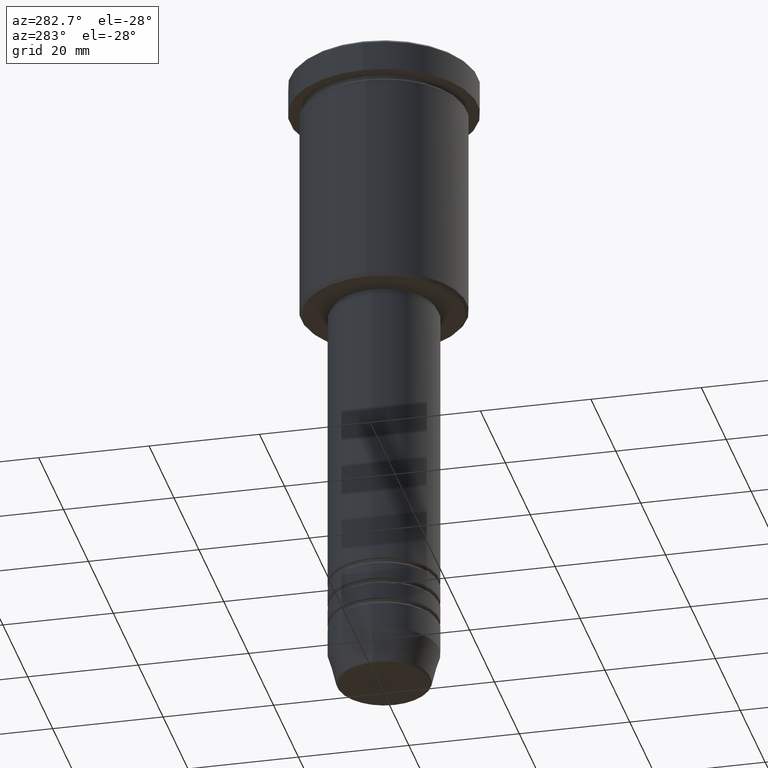
[diagram: clean part render]
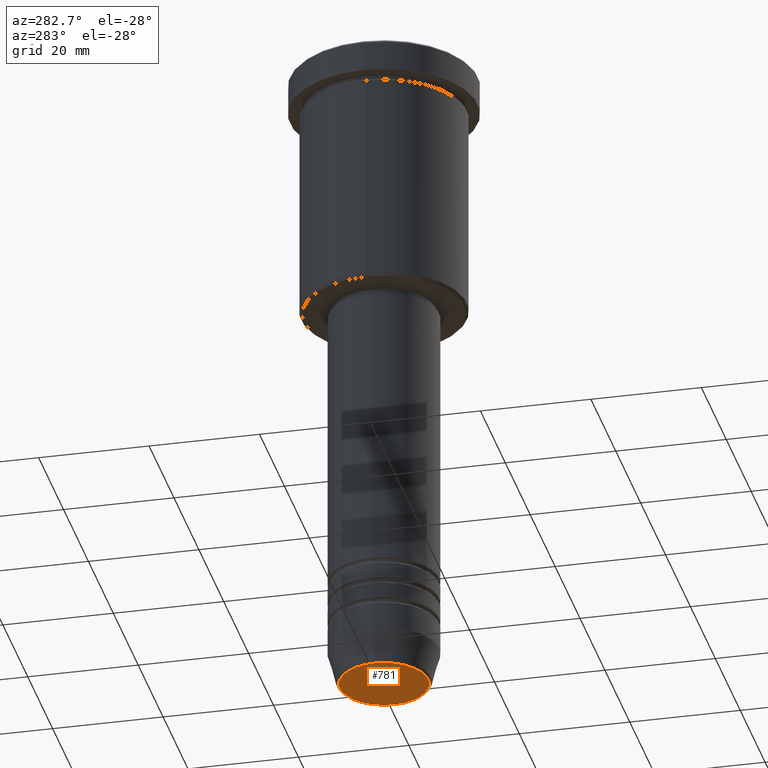
[diagram: same view with one face highlighted and labeled with its STEP entity id]
A machine part, auxiliary view. The second image highlights one B-rep face of the part: STEP entity #781.
In plain terms, the highlighted planar face has unit normal (0, -0, 1).
Its self-contained STEP definition (entity closure, byte-faithful):
#54 = ORIENTED_EDGE ( 'NONE', *, *, #552, .T. ) ;
#156 = AXIS2_PLACEMENT_3D ( 'NONE', #278, #261, #440 ) ;
#224 = DIRECTION ( 'NONE',  ( 1.000000000000000000, 0.000000000000000000, 0.000000000000000000 ) ) ;
#257 = DIRECTION ( 'NONE',  ( 0.000000000000000000, 0.000000000000000000, -1.000000000000000000 ) ) ;
#261 = DIRECTION ( 'NONE',  ( 0.000000000000000000, -0.000000000000000000, 1.000000000000000000 ) ) ;
#278 = CARTESIAN_POINT ( 'NONE',  ( 0.000000000000000000, 0.000000000000000000, -120.0000000000000000 ) ) ;
#330 = EDGE_CURVE ( 'NONE', #672, #882, #985, .T. ) ;
#404 = CIRCLE ( 'NONE', #1087, 8.008641351423779753 ) ;
#423 = FACE_OUTER_BOUND ( 'NONE', #910, .T. ) ;
#440 = DIRECTION ( 'NONE',  ( 1.000000000000000000, 0.000000000000000000, 0.000000000000000000 ) ) ;
#515 = DIRECTION ( 'NONE',  ( 1.000000000000000000, 0.000000000000000000, 0.000000000000000000 ) ) ;
#552 = EDGE_CURVE ( 'NONE', #882, #672, #404, .T. ) ;
#672 = VERTEX_POINT ( 'NONE', #682 ) ;
#682 = CARTESIAN_POINT ( 'NONE',  ( -8.008641351423779753, 1.010348648938493172E-15, -120.0000000000000000 ) ) ;
#759 = CARTESIAN_POINT ( 'NONE',  ( 0.000000000000000000, 0.000000000000000000, -120.0000000000000000 ) ) ;
#781 = ADVANCED_FACE ( 'NONE', ( #423 ), #845, .F. ) ;
#845 = PLANE ( 'NONE',  #156 ) ;
#882 = VERTEX_POINT ( 'NONE', #923 ) ;
#910 = EDGE_LOOP ( 'NONE', ( #54, #1034 ) ) ;
#923 = CARTESIAN_POINT ( 'NONE',  ( 8.008641351423779753, 0.000000000000000000, -120.0000000000000000 ) ) ;
#985 = CIRCLE ( 'NONE', #1182, 8.008641351423779753 ) ;
#1034 = ORIENTED_EDGE ( 'NONE', *, *, #330, .T. ) ;
#1051 = DIRECTION ( 'NONE',  ( 0.000000000000000000, 0.000000000000000000, -1.000000000000000000 ) ) ;
#1077 = CARTESIAN_POINT ( 'NONE',  ( 0.000000000000000000, 0.000000000000000000, -120.0000000000000000 ) ) ;
#1087 = AXIS2_PLACEMENT_3D ( 'NONE', #759, #1051, #224 ) ;
#1182 = AXIS2_PLACEMENT_3D ( 'NONE', #1077, #257, #515 ) ;